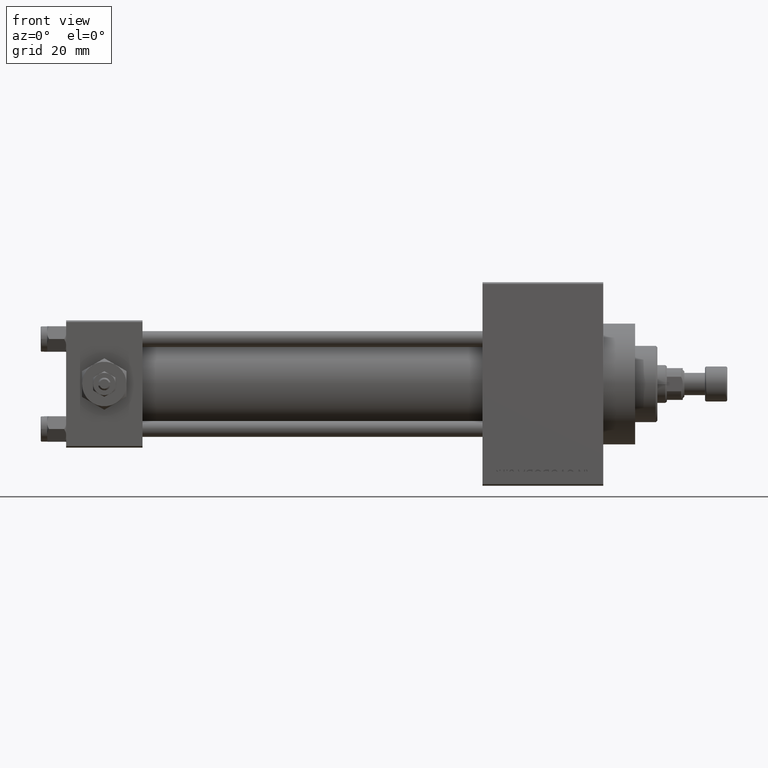
[diagram: clean part render]
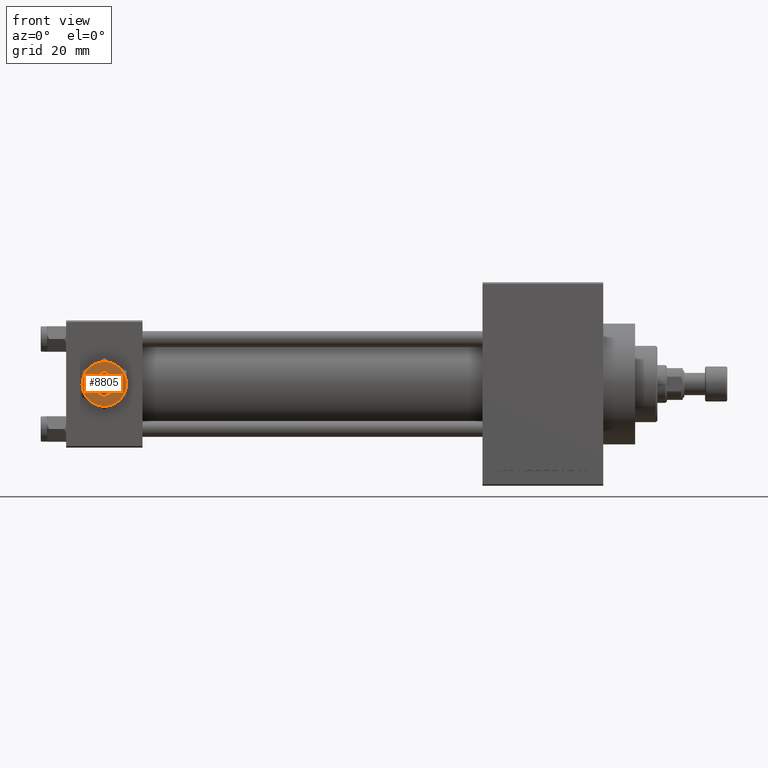
[diagram: same view with one face highlighted and labeled with its STEP entity id]
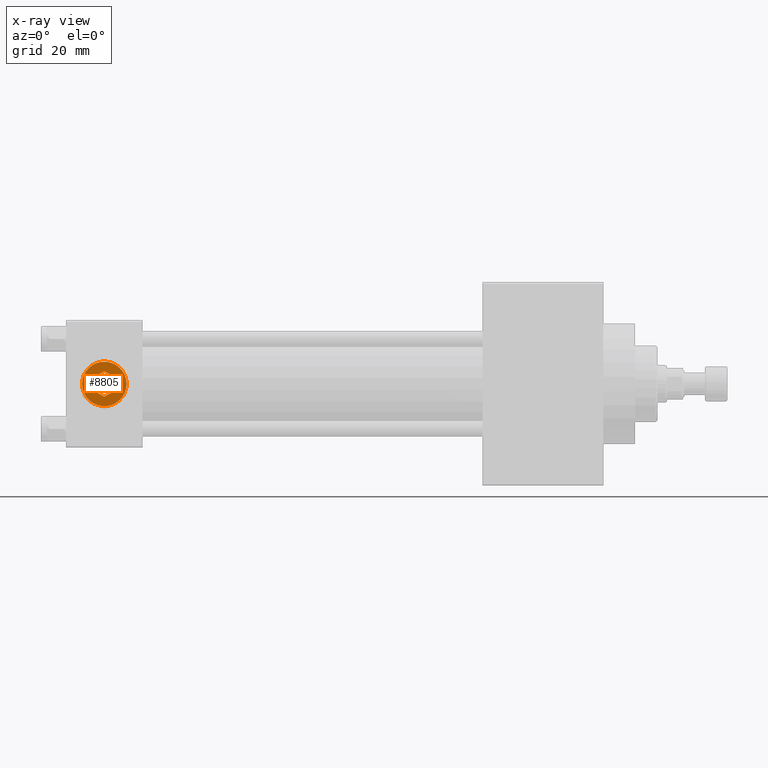
[diagram: x-ray of the same camera — body ghosted, the highlighted face saturated]
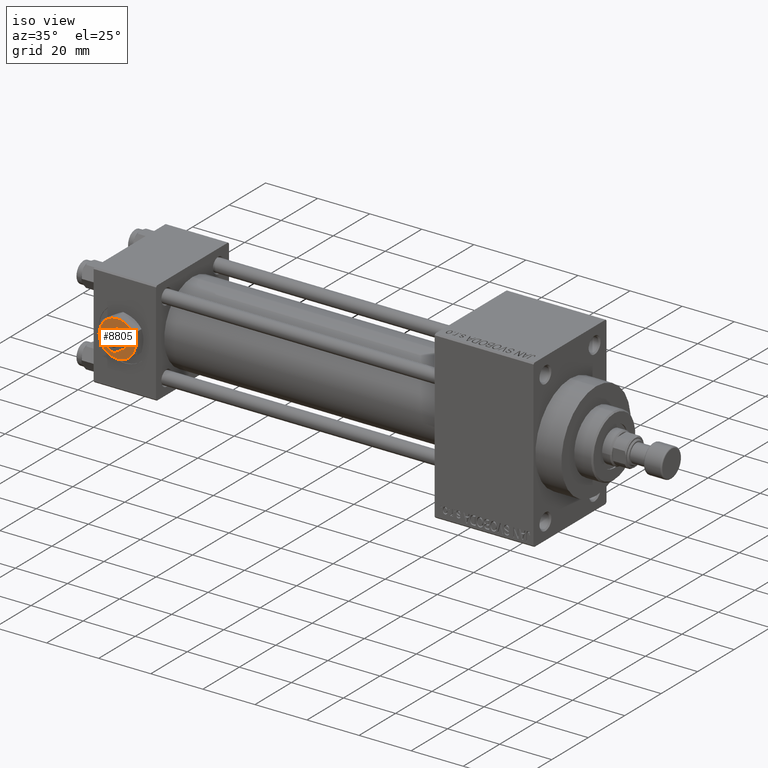
[diagram: same view with one face highlighted and labeled with its STEP entity id]
A machine part, front view. The second image highlights one B-rep face of the part: STEP entity #8805.
The next image is the same camera in x-ray: the body ghosted, the highlighted face saturated — about 0% of this face is hidden behind the body in this view.
A second angle (iso view) of the same face is appended — the face is thin or edge-on in the first view.
In plain terms, the highlighted planar face has unit normal (0, -1, -0).
Its self-contained STEP definition (entity closure, byte-faithful):
#32 = DIRECTION ( 'NONE',  ( 0.000000000000000000, 0.000000000000000000, 1.000000000000000000 ) ) ;
#53 = ORIENTED_EDGE ( 'NONE', *, *, #39035, .F. ) ;
#234 = ORIENTED_EDGE ( 'NONE', *, *, #8980, .T. ) ;
#528 = CARTESIAN_POINT ( 'NONE',  ( 0.000000000000000000, 0.000000000000000000, 4.299999999999999822 ) ) ;
#679 = DIRECTION ( 'NONE',  ( -0.8660254037844385966, -0.4999999999999998890, 0.000000000000000000 ) ) ;
#872 = AXIS2_PLACEMENT_3D ( 'NONE', #49229, #18641, #30819 ) ;
#1084 = CARTESIAN_POINT ( 'NONE',  ( -3.499999999999999112, 2.020725942163690725, 4.299999999999999822 ) ) ;
#1537 = AXIS2_PLACEMENT_3D ( 'NONE', #6019, #33169, #21233 ) ;
#2107 = CARTESIAN_POINT ( 'NONE',  ( 3.500000000000000000, -2.020725942163690281, 4.299999999999999822 ) ) ;
#3379 = CARTESIAN_POINT ( 'NONE',  ( 3.499999999999999556, -2.020725942163690281, 4.299999999999999822 ) ) ;
#4234 = DIRECTION ( 'NONE',  ( 0.8660254037844385966, -0.4999999999999998890, 0.000000000000000000 ) ) ;
#4623 = VERTEX_POINT ( 'NONE', #25609 ) ;
#5004 = AXIS2_PLACEMENT_3D ( 'NONE', #528, #32, #30906 ) ;
#5187 = LINE ( 'NONE', #43038, #23041 ) ;
#5681 = CARTESIAN_POINT ( 'NONE',  ( 3.499999999999998224, 2.020725942163691613, 4.299999999999999822 ) ) ;
#6019 = CARTESIAN_POINT ( 'NONE',  ( 0.000000000000000000, 0.000000000000000000, 4.299999999999999822 ) ) ;
#6841 = EDGE_CURVE ( 'NONE', #6993, #11695, #44595, .T. ) ;
#6993 = VERTEX_POINT ( 'NONE', #44717 ) ;
#7338 = CARTESIAN_POINT ( 'NONE',  ( 3.500000000000000444, 6.062177826491073063, 4.299999999999999822 ) ) ;
#7661 = CARTESIAN_POINT ( 'NONE',  ( 3.499999999999998224, 2.020725942163691613, 4.299999999999999822 ) ) ;
#7787 = FACE_BOUND ( 'NONE', #45747, .T. ) ;
#8288 = FACE_OUTER_BOUND ( 'NONE', #22573, .T. ) ;
#8528 = DIRECTION ( 'NONE',  ( 1.000000000000000000, 0.000000000000000000, 0.000000000000000000 ) ) ;
#8805 = ADVANCED_FACE ( 'NONE', ( #8288, #7787 ), #46129, .T. ) ;
#8980 = EDGE_CURVE ( 'NONE', #4623, #6993, #43881, .T. ) ;
#9993 = DIRECTION ( 'NONE',  ( 1.000000000000000000, 0.000000000000000000, 0.000000000000000000 ) ) ;
#10045 = ORIENTED_EDGE ( 'NONE', *, *, #17968, .F. ) ;
#10486 = DIRECTION ( 'NONE',  ( 0.000000000000000000, 0.000000000000000000, 1.000000000000000000 ) ) ;
#10733 = CARTESIAN_POINT ( 'NONE',  ( 0.000000000000000000, 0.000000000000000000, 4.299999999999999822 ) ) ;
#11138 = CARTESIAN_POINT ( 'NONE',  ( 0.000000000000000000, 4.041451884327380562, 4.299999999999999822 ) ) ;
#11584 = LINE ( 'NONE', #3379, #24951 ) ;
#11695 = VERTEX_POINT ( 'NONE', #7338 ) ;
#11742 = ORIENTED_EDGE ( 'NONE', *, *, #13361, .F. ) ;
#13177 = VECTOR ( 'NONE', #679, 1000.000000000000227 ) ;
#13353 = VERTEX_POINT ( 'NONE', #37491 ) ;
#13361 = EDGE_CURVE ( 'NONE', #13517, #40147, #11584, .T. ) ;
#13517 = VERTEX_POINT ( 'NONE', #2107 ) ;
#13712 = VERTEX_POINT ( 'NONE', #44088 ) ;
#14253 = CIRCLE ( 'NONE', #1537, 7.000000000000001776 ) ;
#15480 = ORIENTED_EDGE ( 'NONE', *, *, #37521, .T. ) ;
#15528 = DIRECTION ( 'NONE',  ( 1.000000000000000000, 0.000000000000000000, -0.000000000000000000 ) ) ;
#15557 = EDGE_CURVE ( 'NONE', #17212, #13712, #15775, .T. ) ;
#15775 = LINE ( 'NONE', #1084, #23473 ) ;
#16904 = DIRECTION ( 'NONE',  ( 0.8660254037844388186, 0.4999999999999996669, 0.000000000000000000 ) ) ;
#17212 = VERTEX_POINT ( 'NONE', #23239 ) ;
#17968 = EDGE_CURVE ( 'NONE', #26847, #17212, #19377, .T. ) ;
#18587 = DIRECTION ( 'NONE',  ( -3.219245568722483357E-16, 1.000000000000000000, 0.000000000000000000 ) ) ;
#18641 = DIRECTION ( 'NONE',  ( 0.000000000000000000, 0.000000000000000000, 1.000000000000000000 ) ) ;
#19377 = LINE ( 'NONE', #11138, #13177 ) ;
#19444 = VECTOR ( 'NONE', #4234, 1000.000000000000227 ) ;
#19754 = DIRECTION ( 'NONE',  ( 0.000000000000000000, 0.000000000000000000, 1.000000000000000000 ) ) ;
#19761 = DIRECTION ( 'NONE',  ( 1.073081856240828196E-16, -1.000000000000000000, 0.000000000000000000 ) ) ;
#19796 = ORIENTED_EDGE ( 'NONE', *, *, #26392, .F. ) ;
#20041 = ORIENTED_EDGE ( 'NONE', *, *, #25860, .T. ) ;
#20182 = CARTESIAN_POINT ( 'NONE',  ( -3.499999999999998668, -2.020725942163689837, 4.299999999999999822 ) ) ;
#20904 = DIRECTION ( 'NONE',  ( -0.8660254037844387076, 0.4999999999999998335, 0.000000000000000000 ) ) ;
#21233 = DIRECTION ( 'NONE',  ( 1.000000000000000000, 0.000000000000000000, 0.000000000000000000 ) ) ;
#21352 = VERTEX_POINT ( 'NONE', #31675 ) ;
#21604 = DIRECTION ( 'NONE',  ( 1.000000000000000000, 0.000000000000000000, 0.000000000000000000 ) ) ;
#22573 = EDGE_LOOP ( 'NONE', ( #234, #25098, #20041, #26236, #44078, #15480 ) ) ;
#23041 = VECTOR ( 'NONE', #16904, 1000.000000000000114 ) ;
#23154 = AXIS2_PLACEMENT_3D ( 'NONE', #27230, #23989, #8528 ) ;
#23239 = CARTESIAN_POINT ( 'NONE',  ( -3.499999999999999112, 2.020725942163690725, 4.299999999999999822 ) ) ;
#23473 = VECTOR ( 'NONE', #19761, 1000.000000000000000 ) ;
#23989 = DIRECTION ( 'NONE',  ( 0.000000000000000000, 0.000000000000000000, 1.000000000000000000 ) ) ;
#24751 = CIRCLE ( 'NONE', #23154, 7.000000000000001776 ) ;
#24951 = VECTOR ( 'NONE', #18587, 1000.000000000000000 ) ;
#25098 = ORIENTED_EDGE ( 'NONE', *, *, #6841, .T. ) ;
#25559 = EDGE_CURVE ( 'NONE', #41371, #47516, #37310, .T. ) ;
#25609 = CARTESIAN_POINT ( 'NONE',  ( 3.500000000000000888, -6.062177826491073951, 4.299999999999999822 ) ) ;
#25743 = VECTOR ( 'NONE', #20904, 1000.000000000000114 ) ;
#25860 = EDGE_CURVE ( 'NONE', #11695, #41371, #14253, .T. ) ;
#26236 = ORIENTED_EDGE ( 'NONE', *, *, #25559, .T. ) ;
#26392 = EDGE_CURVE ( 'NONE', #13353, #13517, #5187, .T. ) ;
#26847 = VERTEX_POINT ( 'NONE', #40945 ) ;
#27230 = CARTESIAN_POINT ( 'NONE',  ( 0.000000000000000000, 0.000000000000000000, 4.299999999999999822 ) ) ;
#27998 = ORIENTED_EDGE ( 'NONE', *, *, #15557, .F. ) ;
#29361 = AXIS2_PLACEMENT_3D ( 'NONE', #43754, #33043, #21604 ) ;
#29788 = EDGE_CURVE ( 'NONE', #47516, #21352, #24751, .T. ) ;
#30819 = DIRECTION ( 'NONE',  ( 1.000000000000000000, 0.000000000000000000, 0.000000000000000000 ) ) ;
#30906 = DIRECTION ( 'NONE',  ( 1.000000000000000000, 0.000000000000000000, 0.000000000000000000 ) ) ;
#31675 = CARTESIAN_POINT ( 'NONE',  ( -3.500000000000000000, -6.062177826491073063, 4.299999999999999822 ) ) ;
#33043 = DIRECTION ( 'NONE',  ( 0.000000000000000000, 0.000000000000000000, 1.000000000000000000 ) ) ;
#33169 = DIRECTION ( 'NONE',  ( 0.000000000000000000, 0.000000000000000000, 1.000000000000000000 ) ) ;
#34859 = LINE ( 'NONE', #20182, #19444 ) ;
#37310 = CIRCLE ( 'NONE', #29361, 7.000000000000001776 ) ;
#37491 = CARTESIAN_POINT ( 'NONE',  ( -2.443687887572056883E-16, -4.041451884327378785, 4.299999999999999822 ) ) ;
#37521 = EDGE_CURVE ( 'NONE', #21352, #4623, #41569, .T. ) ;
#38297 = AXIS2_PLACEMENT_3D ( 'NONE', #38668, #19754, #15528 ) ;
#38668 = CARTESIAN_POINT ( 'NONE',  ( 0.000000000000000000, 0.000000000000000000, 4.299999999999999822 ) ) ;
#39035 = EDGE_CURVE ( 'NONE', #40147, #26847, #43791, .T. ) ;
#39769 = EDGE_CURVE ( 'NONE', #13712, #13353, #34859, .T. ) ;
#40147 = VERTEX_POINT ( 'NONE', #7661 ) ;
#40945 = CARTESIAN_POINT ( 'NONE',  ( 0.000000000000000000, 4.041451884327380562, 4.299999999999999822 ) ) ;
#41371 = VERTEX_POINT ( 'NONE', #47419 ) ;
#41569 = CIRCLE ( 'NONE', #5004, 7.000000000000001776 ) ;
#42145 = ORIENTED_EDGE ( 'NONE', *, *, #39769, .F. ) ;
#43038 = CARTESIAN_POINT ( 'NONE',  ( -2.443687887572056883E-16, -4.041451884327378785, 4.299999999999999822 ) ) ;
#43754 = CARTESIAN_POINT ( 'NONE',  ( 0.000000000000000000, 0.000000000000000000, 4.299999999999999822 ) ) ;
#43791 = LINE ( 'NONE', #5681, #25743 ) ;
#43881 = CIRCLE ( 'NONE', #44665, 7.000000000000001776 ) ;
#44078 = ORIENTED_EDGE ( 'NONE', *, *, #29788, .T. ) ;
#44088 = CARTESIAN_POINT ( 'NONE',  ( -3.499999999999998668, -2.020725942163689837, 4.299999999999999822 ) ) ;
#44595 = CIRCLE ( 'NONE', #872, 7.000000000000001776 ) ;
#44665 = AXIS2_PLACEMENT_3D ( 'NONE', #10733, #10486, #9993 ) ;
#44717 = CARTESIAN_POINT ( 'NONE',  ( 6.999999999999994671, 3.004629197474313724E-15, 4.299999999999999822 ) ) ;
#45747 = EDGE_LOOP ( 'NONE', ( #10045, #53, #11742, #19796, #42145, #27998 ) ) ;
#46129 = PLANE ( 'NONE',  #38297 ) ;
#47419 = CARTESIAN_POINT ( 'NONE',  ( -3.500000000000000888, 6.062177826491073063, 4.299999999999999822 ) ) ;
#47516 = VERTEX_POINT ( 'NONE', #48521 ) ;
#48521 = CARTESIAN_POINT ( 'NONE',  ( -7.000000000000001776, -2.253471898105739040E-15, 4.299999999999999822 ) ) ;
#49229 = CARTESIAN_POINT ( 'NONE',  ( 0.000000000000000000, 0.000000000000000000, 4.299999999999999822 ) ) ;